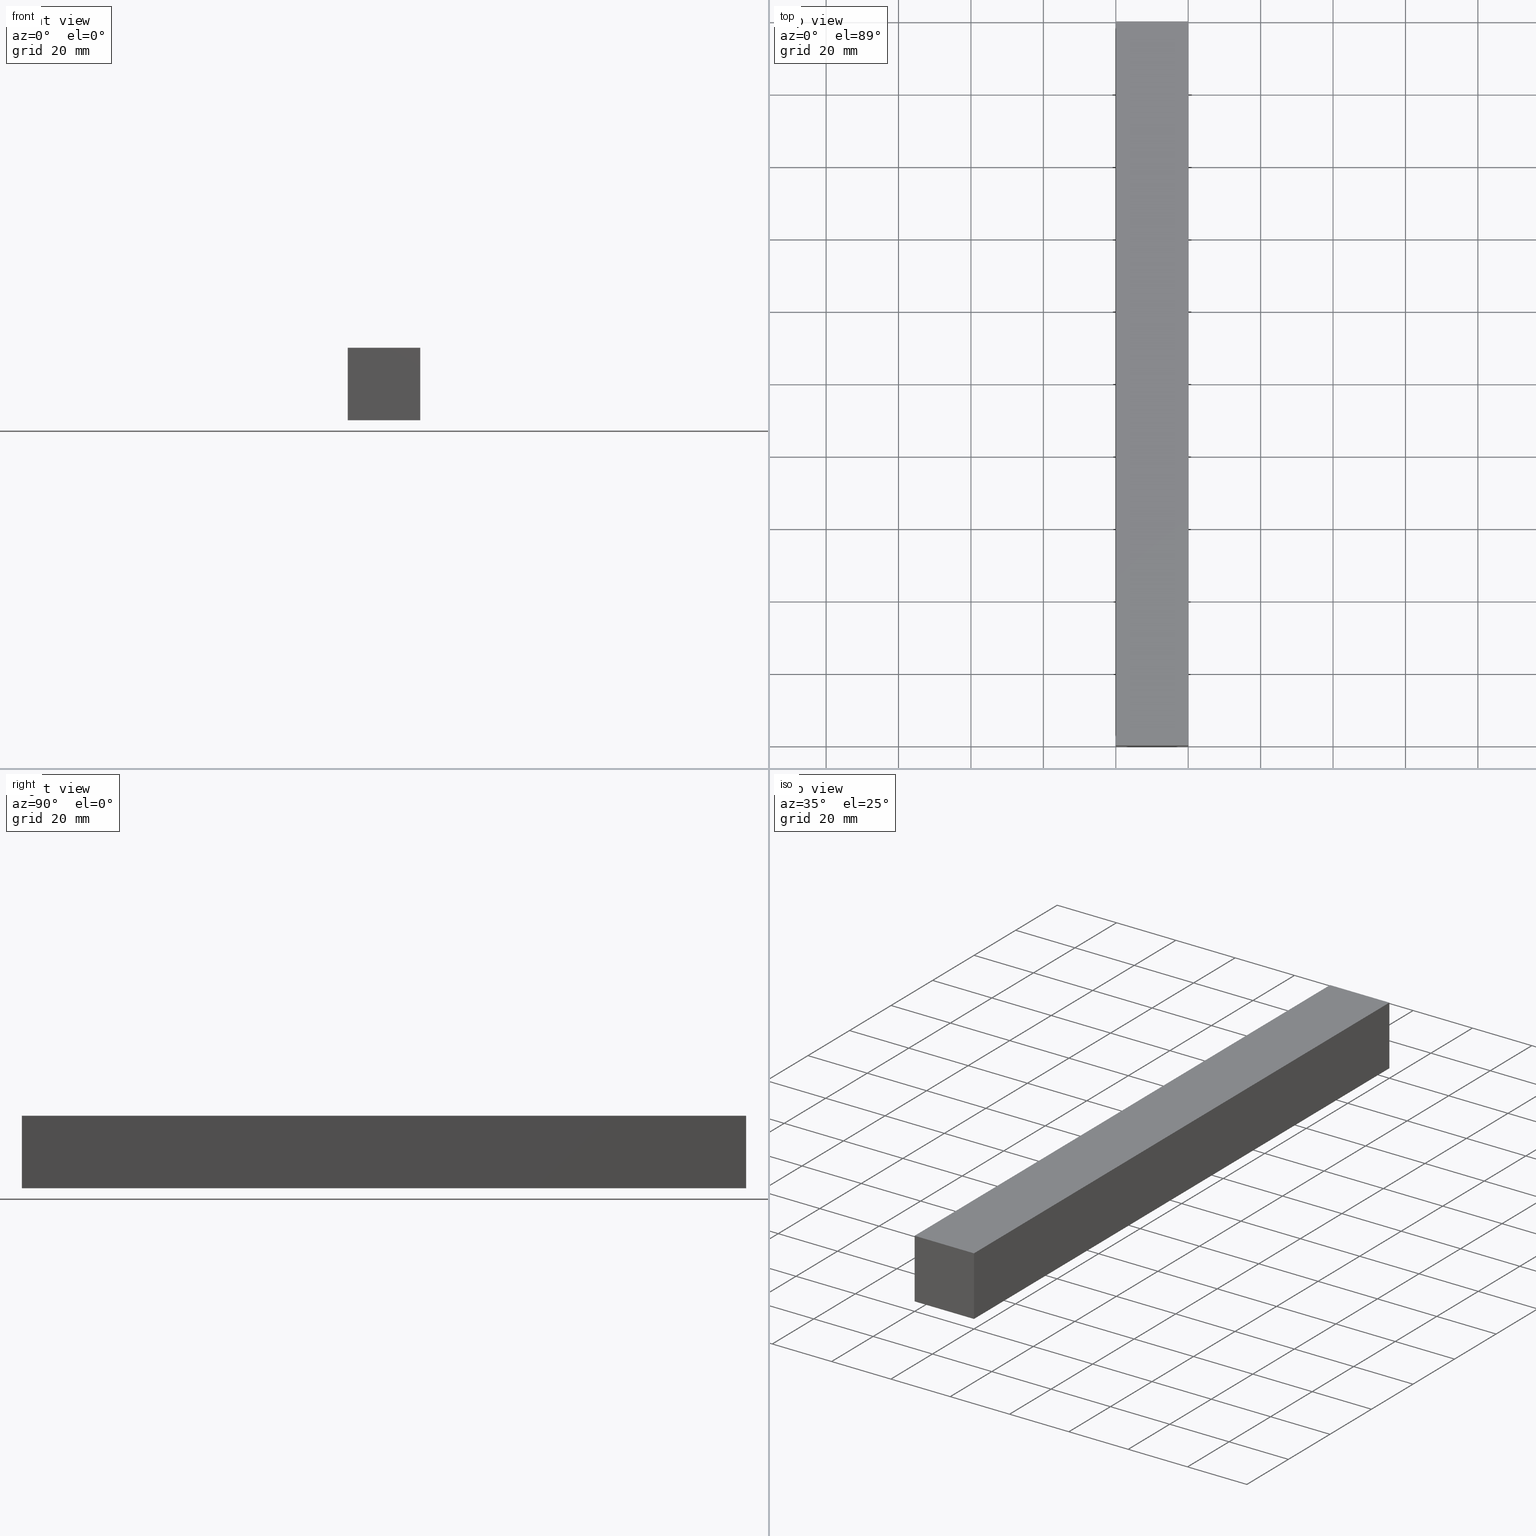
[diagram: canonical four-view strip — front | top / right | iso, engineering-drawing reading convention]
A machine part, canonical four-view strip (front | top / right | iso — engineering-drawing reading convention). The complete STEP part file that produces these views, byte-faithful:
ISO-10303-21;
HEADER;
FILE_DESCRIPTION (( 'STEP AP214' ),
    '1' );
FILE_NAME ('TM_340_16.STEP',
    '2016-05-09T06:37:25',
    ( '' ),
    ( '' ),
    'SwSTEP 2.0',
    'SolidWorks 2015',
    '' );
FILE_SCHEMA (( 'AUTOMOTIVE_DESIGN' ));
ENDSEC;

DATA;
#1 = COLOUR_RGB ( '',0.7921568627450980000, 0.8196078431372548800, 0.9333333333333333500 ) ;
#2 = DIRECTION ( 'NONE',  ( 0.0000000000000000000, 0.0000000000000000000, -1.000000000000000000 ) ) ;
#3 = ORIENTED_EDGE ( 'NONE', *, *, #192, .F. ) ;
#4 = DIRECTION ( 'NONE',  ( 1.000000000000000000, 0.0000000000000000000, 0.0000000000000000000 ) ) ;
#5 = ADVANCED_FACE ( 'NONE', ( #121 ), #51, .F. ) ;
#6 = DIRECTION ( 'NONE',  ( 1.000000000000000000, 0.0000000000000000000, 0.0000000000000000000 ) ) ;
#7 = ADVANCED_FACE ( 'NONE', ( #212 ), #67, .F. ) ;
#8 = PLANE ( 'NONE',  #171 ) ;
#9 = CARTESIAN_POINT ( 'NONE',  ( 0.0000000000000000000, 0.0000000000000000000, 0.0000000000000000000 ) ) ;
#10 = PRESENTATION_STYLE_ASSIGNMENT (( #79 ) ) ;
#11 = VECTOR ( 'NONE', #25, 1000.000000000000000 ) ;
#12 =( LENGTH_UNIT ( ) NAMED_UNIT ( * ) SI_UNIT ( .MILLI., .METRE. ) );
#13 = DIRECTION ( 'NONE',  ( 0.0000000000000000000, -1.000000000000000000, 0.0000000000000000000 ) ) ;
#14 =( GEOMETRIC_REPRESENTATION_CONTEXT ( 3 ) GLOBAL_UNCERTAINTY_ASSIGNED_CONTEXT ( ( #211 ) ) GLOBAL_UNIT_ASSIGNED_CONTEXT ( ( #120, #109, #80 ) ) REPRESENTATION_CONTEXT ( 'NONE', 'WORKASPACE' ) );
#15 = DIRECTION ( 'NONE',  ( 0.0000000000000000000, -1.000000000000000000, 0.0000000000000000000 ) ) ;
#16 = CARTESIAN_POINT ( 'NONE',  ( 20.00000000000000000, 1000.000000000000000, 0.0000000000000000000 ) ) ;
#17 = ORIENTED_EDGE ( 'NONE', *, *, #71, .T. ) ;
#18 = AXIS2_PLACEMENT_3D ( 'NONE', #185, #53, #35 ) ;
#19 = VECTOR ( 'NONE', #89, 1000.000000000000000 ) ;
#20 = PRODUCT_DEFINITION_SHAPE ( 'NONE', 'NONE',  #102 ) ;
#21 = CARTESIAN_POINT ( 'NONE',  ( 20.00000000000000000, 200.0000000000000000, 0.0000000000000000000 ) ) ;
#22 =( NAMED_UNIT ( * ) PLANE_ANGLE_UNIT ( ) SI_UNIT ( $, .RADIAN. ) );
#23 = FACE_OUTER_BOUND ( 'NONE', #85, .T. ) ;
#24 = CARTESIAN_POINT ( 'NONE',  ( 0.0000000000000000000, 0.0000000000000000000, 0.0000000000000000000 ) ) ;
#25 = DIRECTION ( 'NONE',  ( 0.0000000000000000000, -1.000000000000000000, 0.0000000000000000000 ) ) ;
#26 = SHAPE_DEFINITION_REPRESENTATION ( #20, #136 ) ;
#27 = VERTEX_POINT ( 'NONE', #24 ) ;
#28 = SURFACE_SIDE_STYLE ('',( #41 ) ) ;
#29 = EDGE_CURVE ( 'NONE', #158, #116, #146, .T. ) ;
#30 = VERTEX_POINT ( 'NONE', #144 ) ;
#31 = ORIENTED_EDGE ( 'NONE', *, *, #52, .T. ) ;
#32 = FACE_OUTER_BOUND ( 'NONE', #126, .T. ) ;
#33 = VECTOR ( 'NONE', #218, 1000.000000000000000 ) ;
#34 = CARTESIAN_POINT ( 'NONE',  ( 20.00000000000000000, 1000.000000000000000, 20.00000000000000000 ) ) ;
#35 = DIRECTION ( 'NONE',  ( 1.000000000000000000, 0.0000000000000000000, 0.0000000000000000000 ) ) ;
#36 =( GEOMETRIC_REPRESENTATION_CONTEXT ( 3 ) GLOBAL_UNCERTAINTY_ASSIGNED_CONTEXT ( ( #50 ) ) GLOBAL_UNIT_ASSIGNED_CONTEXT ( ( #60, #22, #236 ) ) REPRESENTATION_CONTEXT ( 'NONE', 'WORKASPACE' ) );
#37 = ORIENTED_EDGE ( 'NONE', *, *, #29, .F. ) ;
#38 = CARTESIAN_POINT ( 'NONE',  ( 0.0000000000000000000, 0.0000000000000000000, 0.0000000000000000000 ) ) ;
#39 = DIRECTION ( 'NONE',  ( 0.0000000000000000000, 0.0000000000000000000, 1.000000000000000000 ) ) ;
#40 = AXIS2_PLACEMENT_3D ( 'NONE', #117, #2, #97 ) ;
#41 = SURFACE_STYLE_FILL_AREA ( #64 ) ;
#42 = PLANE ( 'NONE',  #219 ) ;
#43 = LINE ( 'NONE', #16, #168 ) ;
#44 = AXIS2_PLACEMENT_3D ( 'NONE', #145, #150, #93 ) ;
#45 = AXIS2_PLACEMENT_3D ( 'NONE', #152, #225, #56 ) ;
#46 = SURFACE_SIDE_STYLE ('',( #54 ) ) ;
#47 = LINE ( 'NONE', #172, #19 ) ;
#48 = PRODUCT_DEFINITION_CONTEXT ( 'detailed design', #119, 'design' ) ;
#49 = ORIENTED_EDGE ( 'NONE', *, *, #215, .F. ) ;
#50 = UNCERTAINTY_MEASURE_WITH_UNIT (LENGTH_MEASURE( 1.000000000000000100E-005 ), #60, 'distance_accuracy_value', 'NONE');
#51 = PLANE ( 'NONE',  #40 ) ;
#52 = EDGE_CURVE ( 'NONE', #158, #214, #101, .T. ) ;
#53 = DIRECTION ( 'NONE',  ( 0.0000000000000000000, 0.0000000000000000000, 1.000000000000000000 ) ) ;
#54 = SURFACE_STYLE_FILL_AREA ( #58 ) ;
#55 = ORIENTED_EDGE ( 'NONE', *, *, #128, .F. ) ;
#56 = DIRECTION ( 'NONE',  ( 1.000000000000000000, 0.0000000000000000000, 0.0000000000000000000 ) ) ;
#57 = AXIS2_PLACEMENT_3D ( 'NONE', #38, #76, #74 ) ;
#58 = FILL_AREA_STYLE ('',( #155 ) ) ;
#59 = ORIENTED_EDGE ( 'NONE', *, *, #166, .T. ) ;
#60 =( LENGTH_UNIT ( ) NAMED_UNIT ( * ) SI_UNIT ( .MILLI., .METRE. ) );
#61 =( NAMED_UNIT ( * ) SI_UNIT ( $, .STERADIAN. ) SOLID_ANGLE_UNIT ( ) );
#62 = ORIENTED_EDGE ( 'NONE', *, *, #203, .T. ) ;
#63 = DIRECTION ( 'NONE',  ( 0.0000000000000000000, -1.000000000000000000, 0.0000000000000000000 ) ) ;
#64 = FILL_AREA_STYLE ('',( #148 ) ) ;
#65 = DIRECTION ( 'NONE',  ( 0.0000000000000000000, 0.0000000000000000000, 1.000000000000000000 ) ) ;
#66 = VECTOR ( 'NONE', #65, 1000.000000000000000 ) ;
#67 = PLANE ( 'NONE',  #18 ) ;
#68 = ORIENTED_EDGE ( 'NONE', *, *, #81, .F. ) ;
#69 =( GEOMETRIC_REPRESENTATION_CONTEXT ( 3 ) GLOBAL_UNCERTAINTY_ASSIGNED_CONTEXT ( ( #83 ) ) GLOBAL_UNIT_ASSIGNED_CONTEXT ( ( #232, #209, #100 ) ) REPRESENTATION_CONTEXT ( 'NONE', 'WORKASPACE' ) );
#70 = CONTEXT_DEPENDENT_SHAPE_REPRESENTATION ( #183, #179 ) ;
#71 = EDGE_CURVE ( 'NONE', #214, #30, #107, .T. ) ;
#72 = VECTOR ( 'NONE', #39, 1000.000000000000000 ) ;
#73 = EDGE_LOOP ( 'NONE', ( #55, #90, #143, #153 ) ) ;
#74 = DIRECTION ( 'NONE',  ( 1.000000000000000000, 0.0000000000000000000, 0.0000000000000000000 ) ) ;
#75 = APPLICATION_PROTOCOL_DEFINITION ( 'draft international standard', 'automotive_design', 1998, #119 ) ;
#76 = DIRECTION ( 'NONE',  ( 0.0000000000000000000, 0.0000000000000000000, 1.000000000000000000 ) ) ;
#77 = SHAPE_DEFINITION_REPRESENTATION ( #154, #134 ) ;
#78 = ORIENTED_EDGE ( 'NONE', *, *, #52, .F. ) ;
#79 = SURFACE_STYLE_USAGE ( .BOTH. , #46 ) ;
#80 =( NAMED_UNIT ( * ) SI_UNIT ( $, .STERADIAN. ) SOLID_ANGLE_UNIT ( ) );
#81 = EDGE_CURVE ( 'NONE', #116, #30, #43, .T. ) ;
#82 = PRODUCT_CONTEXT ( 'NONE', #201, 'mechanical' ) ;
#83 = UNCERTAINTY_MEASURE_WITH_UNIT (LENGTH_MEASURE( 1.000000000000000100E-005 ), #232, 'distance_accuracy_value', 'NONE');
#84 = SHAPE_REPRESENTATION_RELATIONSHIP ( 'NONE' , 'NONE' ,  #136, #220 ) ;
#85 = EDGE_LOOP ( 'NONE', ( #59, #234, #188, #173 ) ) ;
#86 = CARTESIAN_POINT ( 'NONE',  ( 20.00000000000000000, 0.0000000000000000000, 20.00000000000000000 ) ) ;
#87 = CARTESIAN_POINT ( 'NONE',  ( 0.0000000000000000000, 200.0000000000000000, 20.00000000000000000 ) ) ;
#88 = PRODUCT_DEFINITION_CONTEXT ( 'detailed design', #123, 'design' ) ;
#89 = DIRECTION ( 'NONE',  ( 1.000000000000000000, 0.0000000000000000000, 0.0000000000000000000 ) ) ;
#90 = ORIENTED_EDGE ( 'NONE', *, *, #177, .F. ) ;
#91 = AXIS2_PLACEMENT_3D ( 'NONE', #139, #200, #181 ) ;
#92 = AXIS2_PLACEMENT_3D ( 'NONE', #189, #137, #6 ) ;
#93 = DIRECTION ( 'NONE',  ( 1.000000000000000000, 0.0000000000000000000, 0.0000000000000000000 ) ) ;
#94 = VECTOR ( 'NONE', #111, 1000.000000000000000 ) ;
#95 = LINE ( 'NONE', #221, #33 ) ;
#96 = EDGE_CURVE ( 'NONE', #116, #135, #95, .T. ) ;
#97 = DIRECTION ( 'NONE',  ( -1.000000000000000000, 0.0000000000000000000, 0.0000000000000000000 ) ) ;
#98 = PRODUCT ( 'TM_340_16', 'TM_340_16', '', ( #82 ) ) ;
#99 = CARTESIAN_POINT ( 'NONE',  ( 0.0000000000000000000, 1000.000000000000000, 20.00000000000000000 ) ) ;
#100 =( NAMED_UNIT ( * ) SI_UNIT ( $, .STERADIAN. ) SOLID_ANGLE_UNIT ( ) );
#101 = LINE ( 'NONE', #178, #11 ) ;
#102 = PRODUCT_DEFINITION ( 'UNKNOWN', '', #105, #88 ) ;
#103 =( NAMED_UNIT ( * ) PLANE_ANGLE_UNIT ( ) SI_UNIT ( $, .RADIAN. ) );
#104 = FACE_OUTER_BOUND ( 'NONE', #73, .T. ) ;
#105 = PRODUCT_DEFINITION_FORMATION_WITH_SPECIFIED_SOURCE ( 'ANY', '', #226, .NOT_KNOWN. ) ;
#106 = APPLICATION_PROTOCOL_DEFINITION ( 'draft international standard', 'automotive_design', 1998, #123 ) ;
#107 = LINE ( 'NONE', #170, #133 ) ;
#108 = DIRECTION ( 'NONE',  ( -1.000000000000000000, 0.0000000000000000000, 0.0000000000000000000 ) ) ;
#109 =( NAMED_UNIT ( * ) PLANE_ANGLE_UNIT ( ) SI_UNIT ( $, .RADIAN. ) );
#110 = EDGE_CURVE ( 'NONE', #30, #27, #122, .T. ) ;
#111 = DIRECTION ( 'NONE',  ( -1.000000000000000000, 0.0000000000000000000, 0.0000000000000000000 ) ) ;
#112 = ADVANCED_FACE ( 'NONE', ( #104 ), #8, .F. ) ;
#113 = COLOUR_RGB ( '',0.7921568627450980000, 0.8196078431372548800, 0.9333333333333333500 ) ;
#114 = VERTEX_POINT ( 'NONE', #87 ) ;
#115 = PRODUCT_RELATED_PRODUCT_CATEGORY ( 'part', '', ( #226 ) ) ;
#116 = VERTEX_POINT ( 'NONE', #21 ) ;
#117 = CARTESIAN_POINT ( 'NONE',  ( 0.0000000000000000000, 1000.000000000000000, 20.00000000000000000 ) ) ;
#118 = CARTESIAN_POINT ( 'NONE',  ( 0.0000000000000000000, 0.0000000000000000000, 0.0000000000000000000 ) ) ;
#119 = APPLICATION_CONTEXT ( 'automotive_design' ) ;
#120 =( LENGTH_UNIT ( ) NAMED_UNIT ( * ) SI_UNIT ( .MILLI., .METRE. ) );
#121 = FACE_OUTER_BOUND ( 'NONE', #224, .T. ) ;
#122 = LINE ( 'NONE', #127, #94 ) ;
#123 = APPLICATION_CONTEXT ( 'automotive_design' ) ;
#124 = VECTOR ( 'NONE', #207, 1000.000000000000000 ) ;
#125 = PRODUCT_DEFINITION ( 'UNKNOWN', '', #138, #48 ) ;
#126 = EDGE_LOOP ( 'NONE', ( #17, #68, #37, #31 ) ) ;
#127 = CARTESIAN_POINT ( 'NONE',  ( 20.00000000000000000, 0.0000000000000000000, 0.0000000000000000000 ) ) ;
#128 = EDGE_CURVE ( 'NONE', #163, #214, #196, .T. ) ;
#129 = LINE ( 'NONE', #230, #72 ) ;
#130 = PRESENTATION_LAYER_ASSIGNMENT (  '', '', ( #195 ) ) ;
#131 = ORIENTED_EDGE ( 'NONE', *, *, #96, .F. ) ;
#132 = LINE ( 'NONE', #204, #227 ) ;
#133 = VECTOR ( 'NONE', #161, 1000.000000000000000 ) ;
#134 = SHAPE_REPRESENTATION ( 'TM_340_16', ( #91, #57 ), #69 ) ;
#135 = VERTEX_POINT ( 'NONE', #233 ) ;
#136 = SHAPE_REPRESENTATION ( 'rubber foam', ( #45 ), #36 ) ;
#137 = DIRECTION ( 'NONE',  ( -0.0000000000000000000, 1.000000000000000000, 0.0000000000000000000 ) ) ;
#138 = PRODUCT_DEFINITION_FORMATION_WITH_SPECIFIED_SOURCE ( 'ANY', '', #98, .NOT_KNOWN. ) ;
#139 = CARTESIAN_POINT ( 'NONE',  ( 0.0000000000000000000, 0.0000000000000000000, 0.0000000000000000000 ) ) ;
#140 = DIRECTION ( 'NONE',  ( -0.0000000000000000000, 1.000000000000000000, 0.0000000000000000000 ) ) ;
#141 = DIRECTION ( 'NONE',  ( 1.000000000000000000, 0.0000000000000000000, 0.0000000000000000000 ) ) ;
#142 =( GEOMETRIC_REPRESENTATION_CONTEXT ( 3 ) GLOBAL_UNCERTAINTY_ASSIGNED_CONTEXT ( ( #193 ) ) GLOBAL_UNIT_ASSIGNED_CONTEXT ( ( #12, #103, #61 ) ) REPRESENTATION_CONTEXT ( 'NONE', 'WORKASPACE' ) );
#143 = ORIENTED_EDGE ( 'NONE', *, *, #110, .F. ) ;
#144 = CARTESIAN_POINT ( 'NONE',  ( 20.00000000000000000, 0.0000000000000000000, 0.0000000000000000000 ) ) ;
#145 = CARTESIAN_POINT ( 'NONE',  ( 0.0000000000000000000, 0.0000000000000000000, 0.0000000000000000000 ) ) ;
#146 = LINE ( 'NONE', #231, #124 ) ;
#147 = PRODUCT_RELATED_PRODUCT_CATEGORY ( 'part', '', ( #98 ) ) ;
#148 = FILL_AREA_STYLE_COLOUR ( '', #1 ) ;
#149 = ORIENTED_EDGE ( 'NONE', *, *, #192, .T. ) ;
#150 = DIRECTION ( 'NONE',  ( 0.0000000000000000000, 0.0000000000000000000, 1.000000000000000000 ) ) ;
#151 = APPLICATION_PROTOCOL_DEFINITION ( 'draft international standard', 'automotive_design', 1998, #165 ) ;
#152 = CARTESIAN_POINT ( 'NONE',  ( 0.0000000000000000000, 0.0000000000000000000, 0.0000000000000000000 ) ) ;
#153 = ORIENTED_EDGE ( 'NONE', *, *, #71, .F. ) ;
#154 = PRODUCT_DEFINITION_SHAPE ( 'NONE', 'NONE',  #125 ) ;
#155 = FILL_AREA_STYLE_COLOUR ( '', #113 ) ;
#156 = PRODUCT_CONTEXT ( 'NONE', #165, 'mechanical' ) ;
#157 = ORIENTED_EDGE ( 'NONE', *, *, #177, .T. ) ;
#158 = VERTEX_POINT ( 'NONE', #235 ) ;
#159 = VECTOR ( 'NONE', #141, 1000.000000000000000 ) ;
#160 = SURFACE_STYLE_USAGE ( .BOTH. , #28 ) ;
#161 = DIRECTION ( 'NONE',  ( 0.0000000000000000000, 0.0000000000000000000, -1.000000000000000000 ) ) ;
#162 = DIRECTION ( 'NONE',  ( 0.0000000000000000000, 0.0000000000000000000, 1.000000000000000000 ) ) ;
#163 = VERTEX_POINT ( 'NONE', #202 ) ;
#164 = PLANE ( 'NONE',  #92 ) ;
#165 = APPLICATION_CONTEXT ( 'automotive_design' ) ;
#166 = EDGE_CURVE ( 'NONE', #114, #158, #47, .T. ) ;
#167 = FACE_OUTER_BOUND ( 'NONE', #198, .T. ) ;
#168 = VECTOR ( 'NONE', #63, 1000.000000000000000 ) ;
#169 = DIRECTION ( 'NONE',  ( 0.0000000000000000000, 0.0000000000000000000, -1.000000000000000000 ) ) ;
#170 = CARTESIAN_POINT ( 'NONE',  ( 20.00000000000000000, 0.0000000000000000000, 20.00000000000000000 ) ) ;
#171 = AXIS2_PLACEMENT_3D ( 'NONE', #118, #140, #190 ) ;
#172 = CARTESIAN_POINT ( 'NONE',  ( 0.0000000000000000000, 200.0000000000000000, 20.00000000000000000 ) ) ;
#173 = ORIENTED_EDGE ( 'NONE', *, *, #215, .T. ) ;
#174 = LINE ( 'NONE', #99, #216 ) ;
#175 = ORIENTED_EDGE ( 'NONE', *, *, #110, .T. ) ;
#176 = EDGE_LOOP ( 'NONE', ( #175, #3, #131, #194 ) ) ;
#177 = EDGE_CURVE ( 'NONE', #27, #163, #229, .T. ) ;
#178 = CARTESIAN_POINT ( 'NONE',  ( 20.00000000000000000, 1000.000000000000000, 20.00000000000000000 ) ) ;
#179 = PRODUCT_DEFINITION_SHAPE ( 'NONE', 'NONE',  #239 ) ;
#180 = ORIENTED_EDGE ( 'NONE', *, *, #166, .F. ) ;
#181 = DIRECTION ( 'NONE',  ( 1.000000000000000000, 0.0000000000000000000, 0.0000000000000000000 ) ) ;
#182 = MANIFOLD_SOLID_BREP ( '���߰�1', #191 ) ;
#183 =( REPRESENTATION_RELATIONSHIP ('NONE','NONE', #134, #136 ) REPRESENTATION_RELATIONSHIP_WITH_TRANSFORMATION ( #213 )SHAPE_REPRESENTATION_RELATIONSHIP( ) );
#184 = APPLICATION_PROTOCOL_DEFINITION ( 'draft international standard', 'automotive_design', 1998, #201 ) ;
#185 = CARTESIAN_POINT ( 'NONE',  ( 20.00000000000000000, 1000.000000000000000, 0.0000000000000000000 ) ) ;
#186 = PLANE ( 'NONE',  #199 ) ;
#187 = ADVANCED_FACE ( 'NONE', ( #32 ), #42, .F. ) ;
#188 = ORIENTED_EDGE ( 'NONE', *, *, #96, .T. ) ;
#189 = CARTESIAN_POINT ( 'NONE',  ( 0.0000000000000000000, 200.0000000000000000, 0.0000000000000000000 ) ) ;
#190 = DIRECTION ( 'NONE',  ( 1.000000000000000000, 0.0000000000000000000, 0.0000000000000000000 ) ) ;
#191 = CLOSED_SHELL ( 'NONE', ( #5, #187, #7, #222, #228, #112 ) ) ;
#192 = EDGE_CURVE ( 'NONE', #135, #27, #132, .T. ) ;
#193 = UNCERTAINTY_MEASURE_WITH_UNIT (LENGTH_MEASURE( 1.000000000000000100E-005 ), #12, 'distance_accuracy_value', 'NONE');
#194 = ORIENTED_EDGE ( 'NONE', *, *, #81, .T. ) ;
#195 = STYLED_ITEM ( 'NONE', ( #210 ), #182 ) ;
#196 = LINE ( 'NONE', #205, #159 ) ;
#197 = CARTESIAN_POINT ( 'NONE',  ( 0.0000000000000000000, 1000.000000000000000, 0.0000000000000000000 ) ) ;
#198 = EDGE_LOOP ( 'NONE', ( #157, #217, #49, #149 ) ) ;
#199 = AXIS2_PLACEMENT_3D ( 'NONE', #197, #4, #169 ) ;
#200 = DIRECTION ( 'NONE',  ( 0.0000000000000000000, 0.0000000000000000000, 1.000000000000000000 ) ) ;
#201 = APPLICATION_CONTEXT ( 'automotive_design' ) ;
#202 = CARTESIAN_POINT ( 'NONE',  ( 0.0000000000000000000, 0.0000000000000000000, 20.00000000000000000 ) ) ;
#203 = EDGE_CURVE ( 'NONE', #114, #163, #174, .T. ) ;
#204 = CARTESIAN_POINT ( 'NONE',  ( 0.0000000000000000000, 1000.000000000000000, 0.0000000000000000000 ) ) ;
#205 = CARTESIAN_POINT ( 'NONE',  ( 0.0000000000000000000, 0.0000000000000000000, 20.00000000000000000 ) ) ;
#206 = ORIENTED_EDGE ( 'NONE', *, *, #128, .T. ) ;
#207 = DIRECTION ( 'NONE',  ( 0.0000000000000000000, 0.0000000000000000000, -1.000000000000000000 ) ) ;
#208 = STYLED_ITEM ( 'NONE', ( #10 ), #220 ) ;
#209 =( NAMED_UNIT ( * ) PLANE_ANGLE_UNIT ( ) SI_UNIT ( $, .RADIAN. ) );
#210 = PRESENTATION_STYLE_ASSIGNMENT (( #160 ) ) ;
#211 = UNCERTAINTY_MEASURE_WITH_UNIT (LENGTH_MEASURE( 1.000000000000000100E-005 ), #120, 'distance_accuracy_value', 'NONE');
#212 = FACE_OUTER_BOUND ( 'NONE', #176, .T. ) ;
#213 = ITEM_DEFINED_TRANSFORMATION ( 'NONE', 'NONE', #57,  #45 ) ;
#214 = VERTEX_POINT ( 'NONE', #86 ) ;
#215 = EDGE_CURVE ( 'NONE', #135, #114, #129, .T. ) ;
#216 = VECTOR ( 'NONE', #13, 1000.000000000000000 ) ;
#217 = ORIENTED_EDGE ( 'NONE', *, *, #203, .F. ) ;
#218 = DIRECTION ( 'NONE',  ( -1.000000000000000000, 0.0000000000000000000, 0.0000000000000000000 ) ) ;
#219 = AXIS2_PLACEMENT_3D ( 'NONE', #34, #108, #162 ) ;
#220 = ADVANCED_BREP_SHAPE_REPRESENTATION ( '', ( #182, #45 ), #36 ) ;
#221 = CARTESIAN_POINT ( 'NONE',  ( 20.00000000000000000, 200.0000000000000000, 0.0000000000000000000 ) ) ;
#222 = ADVANCED_FACE ( 'NONE', ( #167 ), #186, .F. ) ;
#223 = PRESENTATION_LAYER_ASSIGNMENT (  '', '', ( #208 ) ) ;
#224 = EDGE_LOOP ( 'NONE', ( #206, #78, #180, #62 ) ) ;
#225 = DIRECTION ( 'NONE',  ( 0.0000000000000000000, 0.0000000000000000000, 1.000000000000000000 ) ) ;
#226 = PRODUCT ( 'rubber foam', 'rubber foam', '', ( #156 ) ) ;
#227 = VECTOR ( 'NONE', #15, 1000.000000000000000 ) ;
#228 = ADVANCED_FACE ( 'NONE', ( #23 ), #164, .T. ) ;
#229 = LINE ( 'NONE', #9, #66 ) ;
#230 = CARTESIAN_POINT ( 'NONE',  ( 0.0000000000000000000, 200.0000000000000000, 0.0000000000000000000 ) ) ;
#231 = CARTESIAN_POINT ( 'NONE',  ( 20.00000000000000000, 200.0000000000000000, 20.00000000000000000 ) ) ;
#232 =( LENGTH_UNIT ( ) NAMED_UNIT ( * ) SI_UNIT ( .MILLI., .METRE. ) );
#233 = CARTESIAN_POINT ( 'NONE',  ( 0.0000000000000000000, 200.0000000000000000, 0.0000000000000000000 ) ) ;
#234 = ORIENTED_EDGE ( 'NONE', *, *, #29, .T. ) ;
#235 = CARTESIAN_POINT ( 'NONE',  ( 20.00000000000000000, 200.0000000000000000, 20.00000000000000000 ) ) ;
#236 =( NAMED_UNIT ( * ) SI_UNIT ( $, .STERADIAN. ) SOLID_ANGLE_UNIT ( ) );
#237 = MECHANICAL_DESIGN_GEOMETRIC_PRESENTATION_REPRESENTATION (  '', ( #195 ), #142 ) ;
#238 = MECHANICAL_DESIGN_GEOMETRIC_PRESENTATION_REPRESENTATION (  '', ( #208 ), #14 ) ;
#239 = NEXT_ASSEMBLY_USAGE_OCCURRENCE ( 'NAUO1', ' ', ' ', #125, #102, $ ) ;
ENDSEC;
END-ISO-10303-21;
